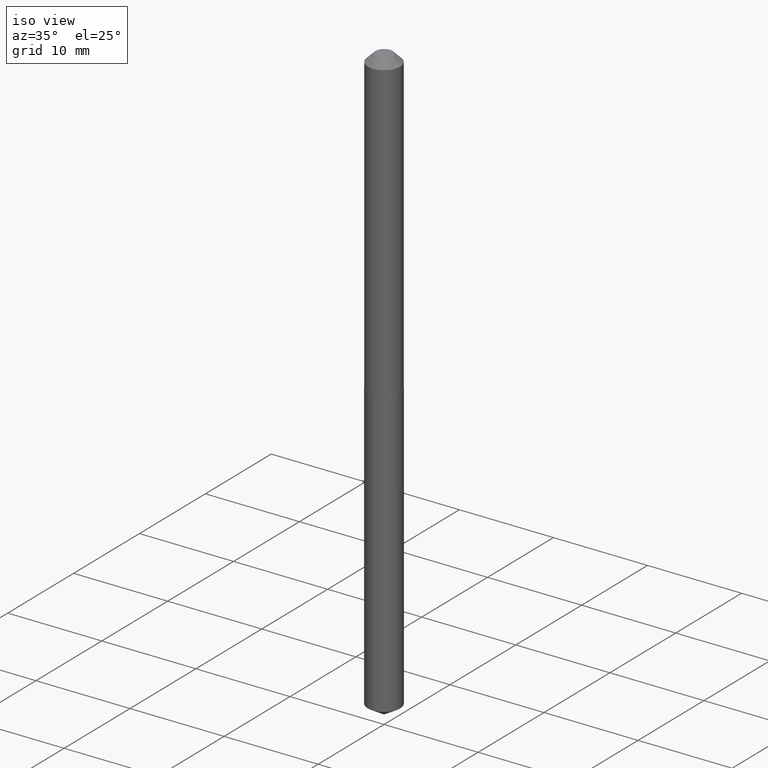
[diagram: clean part render]
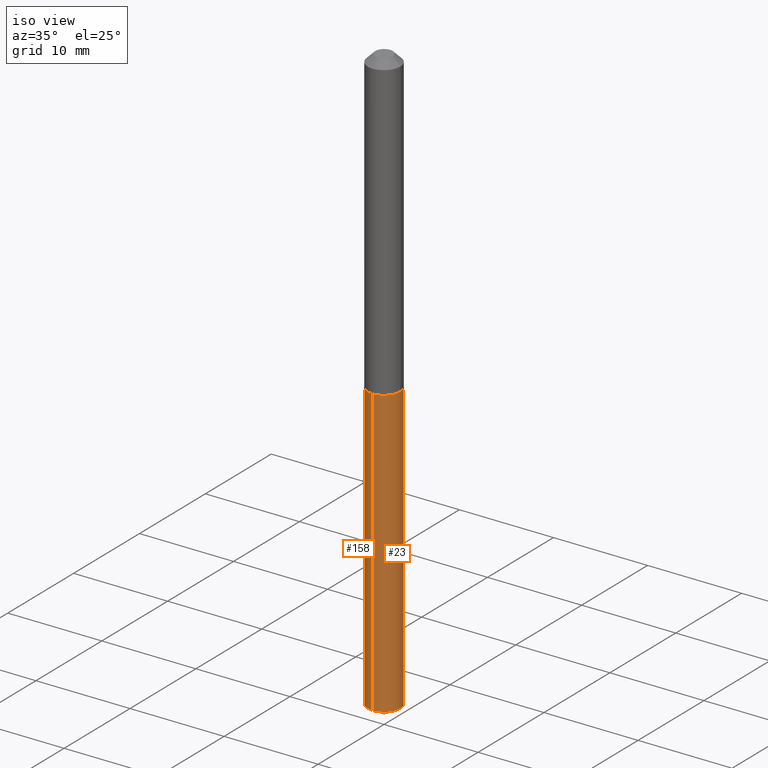
[diagram: same view with one multi-face feature highlighted, each face labeled with its STEP entity id]
A machine part, iso view. The highlighted faces form ONE feature: a constant-radius fillet chain: 2 tangent blend faces with common blend radius 1.7272 mm. The faces share edges in the B-rep.
Their STEP definitions:
[1] entity #158 (Cylinder):
#4 = ORIENTED_EDGE ( 'NONE', *, *, #261, .T. ) ;
#13 = DIRECTION ( 'NONE',  ( -2.445603191114708254E-29, 3.491288891975283825E-15, 1.000000000000000000 ) ) ;
#53 = EDGE_LOOP ( 'NONE', ( #114, #246, #4, #99 ) ) ;
#62 = VERTEX_POINT ( 'NONE', #148 ) ;
#73 = LINE ( 'NONE', #275, #128 ) ;
#99 = ORIENTED_EDGE ( 'NONE', *, *, #295, .F. ) ;
#107 = FACE_OUTER_BOUND ( 'NONE', #53, .T. ) ;
#108 = AXIS2_PLACEMENT_3D ( 'NONE', #345, #196, #232 ) ;
#110 = DIRECTION ( 'NONE',  ( -6.982962677686265922E-15, -1.000000000000000000, 4.017423520094504617E-15 ) ) ;
#114 = ORIENTED_EDGE ( 'NONE', *, *, #231, .F. ) ;
#128 = VECTOR ( 'NONE', #350, 39.37007874015748143 ) ;
#134 = CIRCLE ( 'NONE', #388, 0.06800000000000000488 ) ;
#136 = DIRECTION ( 'NONE',  ( -6.982962677686265922E-15, -1.000000000000000000, 4.017423520094504617E-15 ) ) ;
#139 = CARTESIAN_POINT ( 'NONE',  ( -4.748414620826352642E-16, -0.06800000000000440414, -1.261000000000000343 ) ) ;
#148 = CARTESIAN_POINT ( 'NONE',  ( 4.831690603169284104E-16, 0.06799999999999560563, -1.261000000000000787 ) ) ;
#158 = ADVANCED_FACE ( 'NONE', ( #107 ), #382, .T. ) ;
#196 = DIRECTION ( 'NONE',  ( -2.445603191114708254E-29, 3.491288891975283825E-15, 1.000000000000000000 ) ) ;
#209 = CARTESIAN_POINT ( 'NONE',  ( -4.748414620826059778E-16, -0.06800000000000858136, -2.459141477906126028 ) ) ;
#219 = VERTEX_POINT ( 'NONE', #380 ) ;
#231 = EDGE_CURVE ( 'NONE', #219, #62, #73, .T. ) ;
#232 = DIRECTION ( 'NONE',  ( -6.982962677686265922E-15, -1.000000000000000000, 4.017423520094504617E-15 ) ) ;
#241 = VERTEX_POINT ( 'NONE', #256 ) ;
#244 = EDGE_CURVE ( 'NONE', #219, #366, #272, .T. ) ;
#246 = ORIENTED_EDGE ( 'NONE', *, *, #244, .T. ) ;
#254 = AXIS2_PLACEMENT_3D ( 'NONE', #281, #280, #110 ) ;
#256 = CARTESIAN_POINT ( 'NONE',  ( -4.748414620826353629E-16, -0.06800000000000441802, -1.261000000000000343 ) ) ;
#260 = CARTESIAN_POINT ( 'NONE',  ( 3.083736164599458455E-29, -4.402757968281207916E-15, -1.261000000000000565 ) ) ;
#261 = EDGE_CURVE ( 'NONE', #366, #241, #375, .T. ) ;
#272 = CIRCLE ( 'NONE', #108, 0.06800000000000000488 ) ;
#275 = CARTESIAN_POINT ( 'NONE',  ( 4.831690603168988281E-16, 0.06799999999999559175, -1.261000000000000787 ) ) ;
#279 = DIRECTION ( 'NONE',  ( -2.445603191114708534E-29, 3.491288891975283825E-15, 1.000000000000000000 ) ) ;
#280 = DIRECTION ( 'NONE',  ( -2.445603191114708254E-29, 3.491288891975283825E-15, 1.000000000000000000 ) ) ;
#281 = CARTESIAN_POINT ( 'NONE',  ( 3.083736164599458455E-29, -4.402757968281207916E-15, -1.261000000000000565 ) ) ;
#295 = EDGE_CURVE ( 'NONE', #62, #241, #134, .T. ) ;
#326 = VECTOR ( 'NONE', #279, 39.37007874015748143 ) ;
#345 = CARTESIAN_POINT ( 'NONE',  ( 6.013914786373571822E-29, -8.585816001109714580E-15, -2.459141477906126028 ) ) ;
#350 = DIRECTION ( 'NONE',  ( -2.445603191114708534E-29, 3.491288891975283825E-15, 1.000000000000000000 ) ) ;
#366 = VERTEX_POINT ( 'NONE', #209 ) ;
#375 = LINE ( 'NONE', #139, #326 ) ;
#380 = CARTESIAN_POINT ( 'NONE',  ( 4.831690603169282131E-16, 0.06799999999999140066, -2.459141477906126472 ) ) ;
#382 = CYLINDRICAL_SURFACE ( 'NONE', #254, 0.06800000000000000488 ) ;
#388 = AXIS2_PLACEMENT_3D ( 'NONE', #260, #13, #136 ) ;
[2] entity #23 (Cylinder):
#12 = EDGE_CURVE ( 'NONE', #366, #219, #192, .T. ) ;
#23 = ADVANCED_FACE ( 'NONE', ( #66 ), #195, .T. ) ;
#37 = DIRECTION ( 'NONE',  ( -6.982962677686265922E-15, -1.000000000000000000, 4.017423520094504617E-15 ) ) ;
#62 = VERTEX_POINT ( 'NONE', #148 ) ;
#66 = FACE_OUTER_BOUND ( 'NONE', #217, .T. ) ;
#68 = DIRECTION ( 'NONE',  ( -6.982962677686265922E-15, -1.000000000000000000, 4.017423520094504617E-15 ) ) ;
#73 = LINE ( 'NONE', #275, #128 ) ;
#85 = EDGE_CURVE ( 'NONE', #241, #62, #212, .T. ) ;
#92 = CARTESIAN_POINT ( 'NONE',  ( 3.083736164599458455E-29, -4.402757968281207916E-15, -1.261000000000000565 ) ) ;
#126 = DIRECTION ( 'NONE',  ( -6.982962677686265922E-15, -1.000000000000000000, 4.017423520094504617E-15 ) ) ;
#128 = VECTOR ( 'NONE', #350, 39.37007874015748143 ) ;
#139 = CARTESIAN_POINT ( 'NONE',  ( -4.748414620826352642E-16, -0.06800000000000440414, -1.261000000000000343 ) ) ;
#148 = CARTESIAN_POINT ( 'NONE',  ( 4.831690603169284104E-16, 0.06799999999999560563, -1.261000000000000787 ) ) ;
#155 = CARTESIAN_POINT ( 'NONE',  ( 3.083736164599458455E-29, -4.402757968281207916E-15, -1.261000000000000565 ) ) ;
#165 = AXIS2_PLACEMENT_3D ( 'NONE', #155, #186, #68 ) ;
#173 = ORIENTED_EDGE ( 'NONE', *, *, #261, .F. ) ;
#183 = DIRECTION ( 'NONE',  ( -2.445603191114708254E-29, 3.491288891975283825E-15, 1.000000000000000000 ) ) ;
#184 = DIRECTION ( 'NONE',  ( -2.445603191114708254E-29, 3.491288891975283825E-15, 1.000000000000000000 ) ) ;
#186 = DIRECTION ( 'NONE',  ( -2.445603191114708254E-29, 3.491288891975283825E-15, 1.000000000000000000 ) ) ;
#192 = CIRCLE ( 'NONE', #266, 0.06800000000000000488 ) ;
#195 = CYLINDRICAL_SURFACE ( 'NONE', #165, 0.06800000000000000488 ) ;
#209 = CARTESIAN_POINT ( 'NONE',  ( -4.748414620826059778E-16, -0.06800000000000858136, -2.459141477906126028 ) ) ;
#210 = ORIENTED_EDGE ( 'NONE', *, *, #231, .T. ) ;
#212 = CIRCLE ( 'NONE', #310, 0.06800000000000000488 ) ;
#217 = EDGE_LOOP ( 'NONE', ( #293, #210, #386, #173 ) ) ;
#219 = VERTEX_POINT ( 'NONE', #380 ) ;
#231 = EDGE_CURVE ( 'NONE', #219, #62, #73, .T. ) ;
#241 = VERTEX_POINT ( 'NONE', #256 ) ;
#249 = CARTESIAN_POINT ( 'NONE',  ( 6.013914786373571822E-29, -8.585816001109714580E-15, -2.459141477906126028 ) ) ;
#256 = CARTESIAN_POINT ( 'NONE',  ( -4.748414620826353629E-16, -0.06800000000000441802, -1.261000000000000343 ) ) ;
#261 = EDGE_CURVE ( 'NONE', #366, #241, #375, .T. ) ;
#266 = AXIS2_PLACEMENT_3D ( 'NONE', #249, #184, #37 ) ;
#275 = CARTESIAN_POINT ( 'NONE',  ( 4.831690603168988281E-16, 0.06799999999999559175, -1.261000000000000787 ) ) ;
#279 = DIRECTION ( 'NONE',  ( -2.445603191114708534E-29, 3.491288891975283825E-15, 1.000000000000000000 ) ) ;
#293 = ORIENTED_EDGE ( 'NONE', *, *, #12, .T. ) ;
#310 = AXIS2_PLACEMENT_3D ( 'NONE', #92, #183, #126 ) ;
#326 = VECTOR ( 'NONE', #279, 39.37007874015748143 ) ;
#350 = DIRECTION ( 'NONE',  ( -2.445603191114708534E-29, 3.491288891975283825E-15, 1.000000000000000000 ) ) ;
#366 = VERTEX_POINT ( 'NONE', #209 ) ;
#375 = LINE ( 'NONE', #139, #326 ) ;
#380 = CARTESIAN_POINT ( 'NONE',  ( 4.831690603169282131E-16, 0.06799999999999140066, -2.459141477906126472 ) ) ;
#386 = ORIENTED_EDGE ( 'NONE', *, *, #85, .F. ) ;